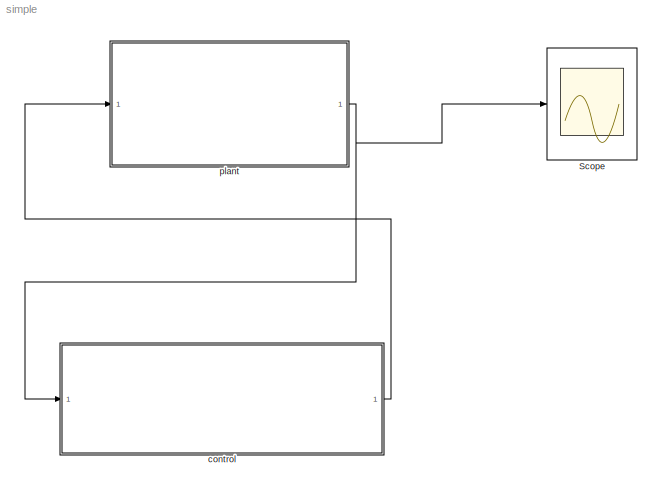
MODEL simple
KIND model
BLOCK [Scope] Scope
  Floating = off
  NumInputPorts = 1
  Ports = [1]
  SID = 5
  ScopeSpecificationString = Simulink.scopes.TimeScopeBlockCfg('CurrentConfiguration', extmgr.ConfigurationSet(extmgr.Configuration('Core','General UI',true),extmgr.Configuration('Core','Source UI',true),extmgr.Configuration('Sources','WiredSimulink',true),extmgr.Configuration('Visuals','Time Domain',true,'SerializedDisplays',{struct('MinYLimReal','-1.00000','MaxYLimReal','1.00000','YLabelReal','','MinYLimMag','0.00000','MaxY...<+1325ch>
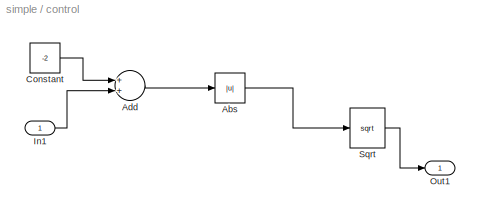
BLOCK [SubSystem] control
  Ports = [1, 1]
  RequestExecContextInheritance = off
  SID = 8
BLOCK [Abs] control/Abs
  SID = 17
  SaturateOnIntegerOverflow = off
BLOCK [Sum] control/Add
  InputSameDT = off
  OutDataTypeStr = Inherit: Inherit via internal rule
  Ports = [2, 1]
  SID = 13
  SaturateOnIntegerOverflow = off
BLOCK [Constant] control/Constant
  SID = 12
  Value = -2
BLOCK [Inport] control/In1
  IconDisplay = Port number
  SID = 9
BLOCK [Outport] control/Out1
  IconDisplay = Port number
  SID = 10
BLOCK [Sqrt] control/Sqrt
  SID = 16
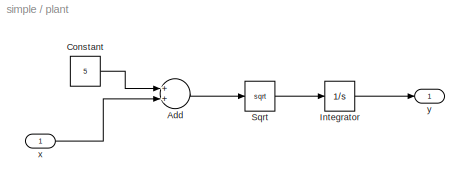
BLOCK [SubSystem] plant
  Ports = [1, 1]
  RequestExecContextInheritance = off
  SID = 2
BLOCK [Sum] plant/Add
  InputSameDT = off
  OutDataTypeStr = Inherit: Inherit via internal rule
  Ports = [2, 1]
  SID = 7
  SaturateOnIntegerOverflow = off
BLOCK [Constant] plant/Constant
  SID = 6
  Value = 5
BLOCK [Integrator] plant/Integrator
  Ports = [1, 1]
  SID = 11
BLOCK [Sqrt] plant/Sqrt
  SID = 14
BLOCK [Inport] plant/x
  IconDisplay = Port number
  SID = 3
BLOCK [Outport] plant/y
  IconDisplay = Port number
  SID = 4
LINE control/Abs:1 -> control/Sqrt:1
LINE control/Add:1 -> control/Abs:1
LINE control/Constant:1 -> control/Add:1
LINE control/In1:1 -> control/Add:2
LINE control/Sqrt:1 -> control/Out1:1
LINE control:1 -> plant:1
LINE plant/Add:1 -> plant/Sqrt:1
LINE plant/Constant:1 -> plant/Add:1
LINE plant/Integrator:1 -> plant/y:1
LINE plant/Sqrt:1 -> plant/Integrator:1
LINE plant/x:1 -> plant/Add:2
NET plant:1 -> Scope:1, control:1
note: NET lines group one-source signal fan-out (src -> all destinations, sorted); 1:1 wires keep LINE
